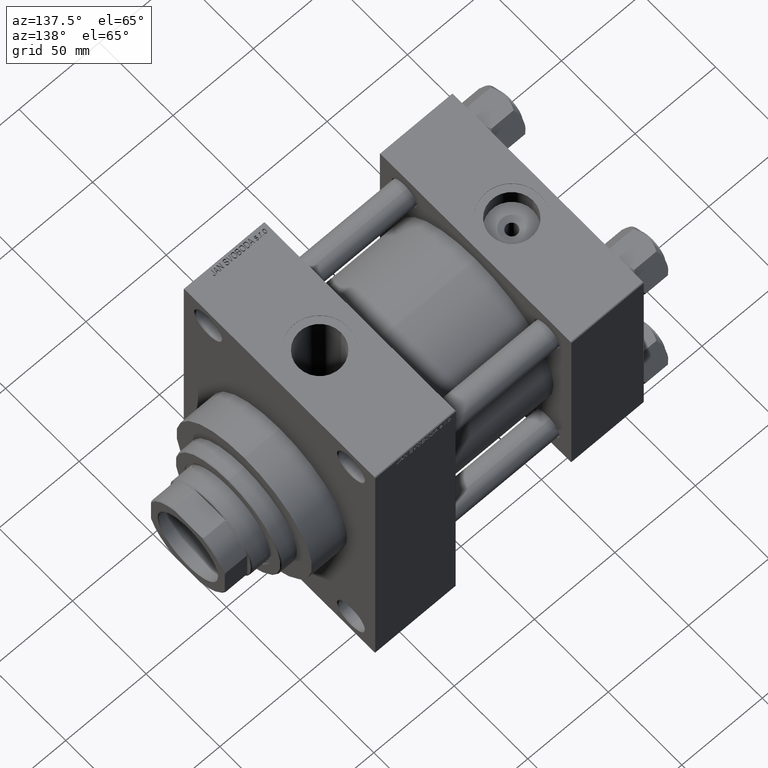
[diagram: clean part render]
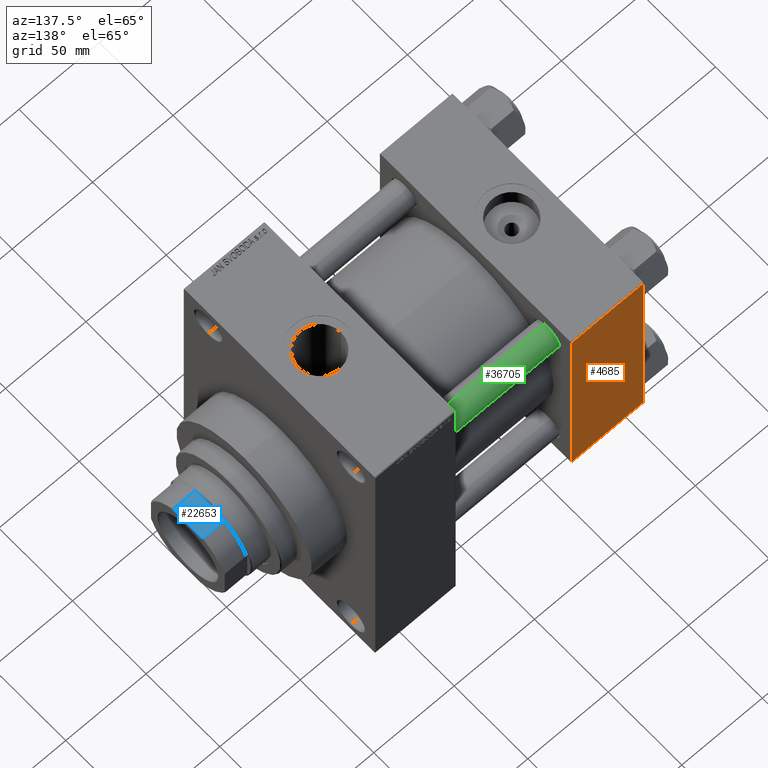
[diagram: same view with three faces highlighted in distinct colors, each labeled with its STEP entity id]
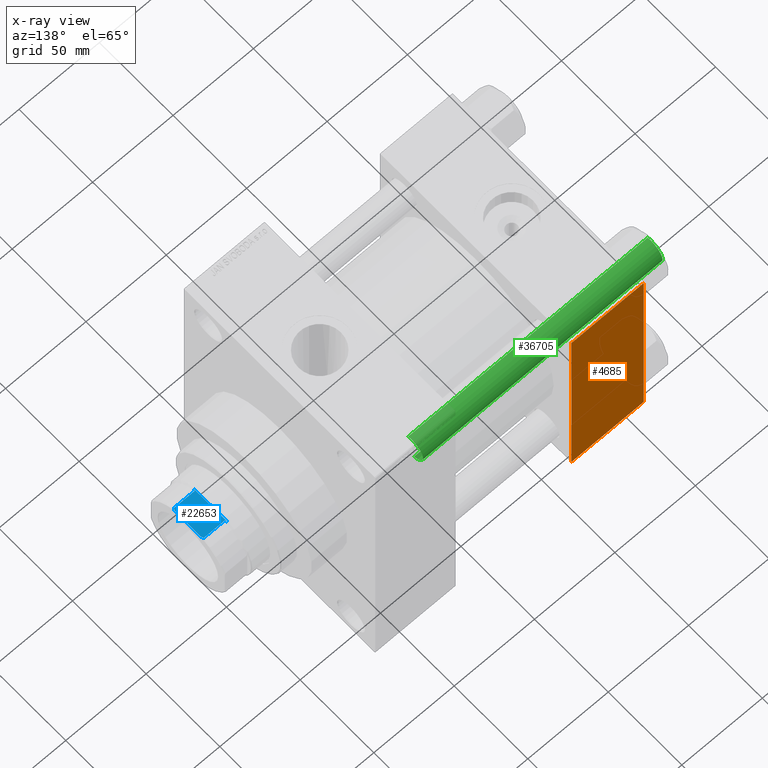
[diagram: x-ray of the same camera — body ghosted, the three highlighted faces saturated]
A machine part, auxiliary view with three faces highlighted in distinct colors.
The next image is the same camera in x-ray (body ghosted, the three faces saturated) — at least one of them is partly hidden behind the body in this view.
Their STEP definitions:

[orange] entity #4685 — the highlighted planar face has unit normal (0, 1, 0).
#506 = CARTESIAN_POINT ( 'NONE',  ( 45.00000000000000000, 65.00000000000000000, -64.49999999999995737 ) ) ;
#1138 = VERTEX_POINT ( 'NONE', #42603 ) ;
#3450 = LINE ( 'NONE', #47638, #39539 ) ;
#3804 = VERTEX_POINT ( 'NONE', #17317 ) ;
#4685 = ADVANCED_FACE ( 'NONE', ( #26714 ), #34434, .T. ) ;
#6747 = VERTEX_POINT ( 'NONE', #506 ) ;
#8692 = ORIENTED_EDGE ( 'NONE', *, *, #38122, .T. ) ;
#12024 = CARTESIAN_POINT ( 'NONE',  ( 45.00000000000000000, 65.00000000000000000, 65.00000000000001421 ) ) ;
#14873 = ORIENTED_EDGE ( 'NONE', *, *, #35989, .T. ) ;
#15197 = EDGE_CURVE ( 'NONE', #6747, #1138, #33347, .T. ) ;
#17317 = CARTESIAN_POINT ( 'NONE',  ( 0.000000000000000000, 65.00000000000000000, 64.49999999999998579 ) ) ;
#17930 = VECTOR ( 'NONE', #35526, 1000.000000000000000 ) ;
#20169 = CARTESIAN_POINT ( 'NONE',  ( 45.00000000000000000, 65.00000000000000000, 64.49999999999998579 ) ) ;
#20557 = LINE ( 'NONE', #23716, #17930 ) ;
#22277 = DIRECTION ( 'NONE',  ( 1.000000000000000000, 0.000000000000000000, 0.000000000000000000 ) ) ;
#23716 = CARTESIAN_POINT ( 'NONE',  ( 0.000000000000000000, 65.00000000000000000, 65.00000000000001421 ) ) ;
#25696 = ORIENTED_EDGE ( 'NONE', *, *, #15197, .T. ) ;
#26714 = FACE_OUTER_BOUND ( 'NONE', #46799, .T. ) ;
#26966 = CARTESIAN_POINT ( 'NONE',  ( 45.00000000000000000, 65.00000000000000000, 65.00000000000001421 ) ) ;
#28273 = AXIS2_PLACEMENT_3D ( 'NONE', #26966, #41918, #34686 ) ;
#30622 = VECTOR ( 'NONE', #36710, 1000.000000000000000 ) ;
#33347 = LINE ( 'NONE', #39865, #30622 ) ;
#33510 = DIRECTION ( 'NONE',  ( 0.000000000000000000, 0.000000000000000000, -1.000000000000000000 ) ) ;
#34434 = PLANE ( 'NONE',  #28273 ) ;
#34686 = DIRECTION ( 'NONE',  ( 0.000000000000000000, -0.000000000000000000, 1.000000000000000000 ) ) ;
#35526 = DIRECTION ( 'NONE',  ( 0.000000000000000000, 0.000000000000000000, -1.000000000000000000 ) ) ;
#35989 = EDGE_CURVE ( 'NONE', #3804, #38512, #3450, .T. ) ;
#36231 = EDGE_CURVE ( 'NONE', #3804, #1138, #20557, .T. ) ;
#36655 = LINE ( 'NONE', #12024, #42791 ) ;
#36710 = DIRECTION ( 'NONE',  ( -1.000000000000000000, 0.000000000000000000, 0.000000000000000000 ) ) ;
#38122 = EDGE_CURVE ( 'NONE', #38512, #6747, #36655, .T. ) ;
#38512 = VERTEX_POINT ( 'NONE', #20169 ) ;
#39539 = VECTOR ( 'NONE', #22277, 1000.000000000000000 ) ;
#39865 = CARTESIAN_POINT ( 'NONE',  ( 45.00000000000000000, 65.00000000000000000, -64.49999999999995737 ) ) ;
#41918 = DIRECTION ( 'NONE',  ( -0.000000000000000000, 1.000000000000000000, 0.000000000000000000 ) ) ;
#42603 = CARTESIAN_POINT ( 'NONE',  ( 0.000000000000000000, 65.00000000000000000, -64.49999999999995737 ) ) ;
#42791 = VECTOR ( 'NONE', #33510, 1000.000000000000000 ) ;
#46799 = EDGE_LOOP ( 'NONE', ( #8692, #25696, #47456, #14873 ) ) ;
#47456 = ORIENTED_EDGE ( 'NONE', *, *, #36231, .F. ) ;
#47638 = CARTESIAN_POINT ( 'NONE',  ( 45.00000000000000000, 65.00000000000000000, 64.49999999999998579 ) ) ;

[blue] entity #22653 — the highlighted planar face has unit normal (0, 0, -1).
#280 = EDGE_LOOP ( 'NONE', ( #32016, #15973, #34382, #26750, #41806, #22209, #18950, #604 ) ) ;
#604 = ORIENTED_EDGE ( 'NONE', *, *, #15417, .T. ) ;
#849 = B_SPLINE_CURVE_WITH_KNOTS ( 'NONE', 3,
 ( #40653, #33652, #18689, #31215 ),
 .UNSPECIFIED., .F., .F.,
 ( 4, 4 ),
 ( 0.1355604709160383725, 0.1368996522529525306 ),
 .UNSPECIFIED. ) ;
#1391 = EDGE_CURVE ( 'NONE', #24728, #8605, #41831, .T. ) ;
#2935 = CARTESIAN_POINT ( 'NONE',  ( 10.19803902718555655, -25.00000000000000000, 178.5000000000000000 ) ) ;
#3449 = CARTESIAN_POINT ( 'NONE',  ( 10.19803902718555655, -25.00000000000000000, 178.5000000000000000 ) ) ;
#4144 = PLANE ( 'NONE',  #35350 ) ;
#4149 = CARTESIAN_POINT ( 'NONE',  ( 11.45643923738976611, -25.00000000000000000, 165.0000000000000000 ) ) ;
#4664 = DIRECTION ( 'NONE',  ( 1.000000000000000000, 0.000000000000000000, 0.000000000000000000 ) ) ;
#5503 = CARTESIAN_POINT ( 'NONE',  ( -8.789197915623443436, -25.00000000000000000, 179.0000000000000284 ) ) ;
#5561 = CARTESIAN_POINT ( 'NONE',  ( 11.45643923738976611, -25.00000000000000000, 165.0000000000000000 ) ) ;
#6192 = VERTEX_POINT ( 'NONE', #22742 ) ;
#7675 = VECTOR ( 'NONE', #26364, 1000.000000000000000 ) ;
#7890 = DIRECTION ( 'NONE',  ( -0.000000000000000000, -0.000000000000000000, 1.000000000000000000 ) ) ;
#8030 = CARTESIAN_POINT ( 'NONE',  ( 9.731776668926016782, -25.00000000000000000, 178.6761096935717887 ) ) ;
#8605 = VERTEX_POINT ( 'NONE', #4149 ) ;
#10139 = CARTESIAN_POINT ( 'NONE',  ( 10.19803902718555655, -25.00000000000000000, 165.5000000000000853 ) ) ;
#10352 = EDGE_CURVE ( 'NONE', #6192, #12978, #45395, .T. ) ;
#11597 = EDGE_CURVE ( 'NONE', #14853, #37225, #44336, .T. ) ;
#12530 = FACE_OUTER_BOUND ( 'NONE', #280, .T. ) ;
#12978 = VERTEX_POINT ( 'NONE', #19022 ) ;
#14853 = VERTEX_POINT ( 'NONE', #39927 ) ;
#15283 = CARTESIAN_POINT ( 'NONE',  ( 8.789197915623477186, -25.00000000000000000, 179.0000000000000284 ) ) ;
#15417 = EDGE_CURVE ( 'NONE', #8605, #14853, #31821, .T. ) ;
#15973 = ORIENTED_EDGE ( 'NONE', *, *, #28628, .T. ) ;
#16663 = CARTESIAN_POINT ( 'NONE',  ( 10.62016728023123768, -25.00000000000000000, 165.3405599852209207 ) ) ;
#17735 = CARTESIAN_POINT ( 'NONE',  ( -10.19803902718555655, -25.00000000000000000, -0.001000000000001000089 ) ) ;
#18689 = CARTESIAN_POINT ( 'NONE',  ( -11.03925053156713965, -25.00000000000000000, 165.1737998930466347 ) ) ;
#18865 = DIRECTION ( 'NONE',  ( 0.000000000000000000, -0.000000000000000000, 1.000000000000000000 ) ) ;
#18950 = ORIENTED_EDGE ( 'NONE', *, *, #1391, .T. ) ;
#19022 = CARTESIAN_POINT ( 'NONE',  ( -10.19803902718555655, -25.00000000000000000, 178.5000000000000000 ) ) ;
#20223 = CARTESIAN_POINT ( 'NONE',  ( -10.19803902718555655, -25.00000000000000000, 178.5000000000000000 ) ) ;
#20567 = B_SPLINE_CURVE_WITH_KNOTS ( 'NONE', 3,
 ( #3449, #8030, #22026, #15283 ),
 .UNSPECIFIED., .F., .F.,
 ( 4, 4 ),
 ( 0.000000000000000000, 0.001494935877430033765 ),
 .UNSPECIFIED. ) ;
#22026 = CARTESIAN_POINT ( 'NONE',  ( 9.262276112429418617, -25.00000000000000000, 178.8430951735361134 ) ) ;
#22101 = VECTOR ( 'NONE', #4664, 1000.000000000000000 ) ;
#22106 = CARTESIAN_POINT ( 'NONE',  ( 8.789197915623477186, -25.00000000000000000, 179.0000000000000284 ) ) ;
#22209 = ORIENTED_EDGE ( 'NONE', *, *, #44788, .T. ) ;
#22653 = ADVANCED_FACE ( 'NONE', ( #12530 ), #4144, .F. ) ;
#22742 = CARTESIAN_POINT ( 'NONE',  ( -8.789197915623443436, -25.00000000000000000, 179.0000000000000284 ) ) ;
#24178 = EDGE_CURVE ( 'NONE', #6192, #30538, #36983, .T. ) ;
#24351 = VECTOR ( 'NONE', #7890, 1000.000000000000000 ) ;
#24728 = VERTEX_POINT ( 'NONE', #39779 ) ;
#24970 = DIRECTION ( 'NONE',  ( -0.000000000000000000, -0.000000000000000000, 1.000000000000000000 ) ) ;
#26364 = DIRECTION ( 'NONE',  ( 1.000000000000000000, 0.000000000000000000, 0.000000000000000000 ) ) ;
#26630 = CARTESIAN_POINT ( 'NONE',  ( -24.99999999999999289, -25.00000000000000000, 165.0000000000000000 ) ) ;
#26750 = ORIENTED_EDGE ( 'NONE', *, *, #10352, .T. ) ;
#27018 = DIRECTION ( 'NONE',  ( 0.000000000000000000, 1.000000000000000000, 0.000000000000000000 ) ) ;
#28628 = EDGE_CURVE ( 'NONE', #37225, #30538, #20567, .T. ) ;
#29984 = CARTESIAN_POINT ( 'NONE',  ( -24.99999999999999289, -25.00000000000000000, 179.0000000000000284 ) ) ;
#30369 = CARTESIAN_POINT ( 'NONE',  ( -9.262276112429397301, -25.00000000000000000, 178.8430951735361134 ) ) ;
#30538 = VERTEX_POINT ( 'NONE', #22106 ) ;
#30823 = VERTEX_POINT ( 'NONE', #32923 ) ;
#30850 = CARTESIAN_POINT ( 'NONE',  ( -9.731776668926000795, -25.00000000000000000, 178.6761096935717887 ) ) ;
#31215 = CARTESIAN_POINT ( 'NONE',  ( -11.45643923738979453, -25.00000000000000000, 165.0000000000000000 ) ) ;
#31821 = B_SPLINE_CURVE_WITH_KNOTS ( 'NONE', 3,
 ( #5561, #46588, #16663, #10139 ),
 .UNSPECIFIED., .F., .F.,
 ( 4, 4 ),
 ( 0.1622062685616141586, 0.1635249585344649148 ),
 .UNSPECIFIED. ) ;
#32016 = ORIENTED_EDGE ( 'NONE', *, *, #11597, .T. ) ;
#32923 = CARTESIAN_POINT ( 'NONE',  ( -10.19803902718555655, -25.00000000000000000, 165.5000000000000853 ) ) ;
#33652 = CARTESIAN_POINT ( 'NONE',  ( -10.61985169700611031, -25.00000000000000000, 165.3406791826300264 ) ) ;
#34382 = ORIENTED_EDGE ( 'NONE', *, *, #24178, .F. ) ;
#35350 = AXIS2_PLACEMENT_3D ( 'NONE', #36973, #27018, #18865 ) ;
#36973 = CARTESIAN_POINT ( 'NONE',  ( -24.99999999999999289, -25.00000000000000000, 179.0000000000000284 ) ) ;
#36983 = LINE ( 'NONE', #29984, #7675 ) ;
#37225 = VERTEX_POINT ( 'NONE', #2935 ) ;
#39779 = CARTESIAN_POINT ( 'NONE',  ( -11.45643923738979453, -25.00000000000000000, 165.0000000000000000 ) ) ;
#39927 = CARTESIAN_POINT ( 'NONE',  ( 10.19803902718555655, -25.00000000000000000, 165.5000000000000853 ) ) ;
#40653 = CARTESIAN_POINT ( 'NONE',  ( -10.19803902718555655, -25.00000000000000000, 165.5000000000000853 ) ) ;
#41340 = VECTOR ( 'NONE', #24970, 1000.000000000000000 ) ;
#41806 = ORIENTED_EDGE ( 'NONE', *, *, #43756, .F. ) ;
#41831 = LINE ( 'NONE', #26630, #22101 ) ;
#43756 = EDGE_CURVE ( 'NONE', #30823, #12978, #44038, .T. ) ;
#43871 = CARTESIAN_POINT ( 'NONE',  ( 10.19803902718555655, -25.00000000000000000, -0.001000000000001000089 ) ) ;
#44038 = LINE ( 'NONE', #17735, #41340 ) ;
#44336 = LINE ( 'NONE', #43871, #24351 ) ;
#44788 = EDGE_CURVE ( 'NONE', #30823, #24728, #849, .T. ) ;
#45395 = B_SPLINE_CURVE_WITH_KNOTS ( 'NONE', 3,
 ( #5503, #30369, #30850, #20223 ),
 .UNSPECIFIED., .F., .F.,
 ( 4, 4 ),
 ( 1.734723475976807094E-18, 0.001494935877430063039 ),
 .UNSPECIFIED. ) ;
#46588 = CARTESIAN_POINT ( 'NONE',  ( 11.03955317472396658, -25.00000000000000000, 165.1736738125761974 ) ) ;

[green] entity #36705 — the highlighted cylindrical surface (edge-blend (fillet) strip) has radius 8 mm, axis along (-1, -0, 0).
#926 = LINE ( 'NONE', #15656, #35215 ) ;
#1156 = DIRECTION ( 'NONE',  ( -0.000000000000000000, -0.000000000000000000, -1.000000000000000000 ) ) ;
#1586 = VERTEX_POINT ( 'NONE', #38147 ) ;
#2362 = VERTEX_POINT ( 'NONE', #44940 ) ;
#2900 = CARTESIAN_POINT ( 'NONE',  ( 8.000000000000000000, 9.797174393178825657E-16, 0.5000000000000004441 ) ) ;
#3681 = CIRCLE ( 'NONE', #32220, 8.000000000000000000 ) ;
#6825 = DIRECTION ( 'NONE',  ( 1.000000000000000000, 0.000000000000000000, 0.000000000000000000 ) ) ;
#7177 = VERTEX_POINT ( 'NONE', #9784 ) ;
#8148 = CYLINDRICAL_SURFACE ( 'NONE', #45749, 8.000000000000000000 ) ;
#9784 = CARTESIAN_POINT ( 'NONE',  ( 8.000000000000000000, 9.797174393178825657E-16, 149.5000000000000000 ) ) ;
#10293 = LINE ( 'NONE', #29335, #37084 ) ;
#13841 = EDGE_CURVE ( 'NONE', #7177, #42534, #926, .T. ) ;
#15656 = CARTESIAN_POINT ( 'NONE',  ( 8.000000000000000000, 9.797174393178825657E-16, 150.0000000000000000 ) ) ;
#16945 = DIRECTION ( 'NONE',  ( 0.000000000000000000, 0.000000000000000000, -1.000000000000000000 ) ) ;
#18537 = CARTESIAN_POINT ( 'NONE',  ( 0.000000000000000000, 0.000000000000000000, 150.0000000000000000 ) ) ;
#21067 = CARTESIAN_POINT ( 'NONE',  ( 0.000000000000000000, 0.000000000000000000, 0.5000000000000004441 ) ) ;
#21694 = ORIENTED_EDGE ( 'NONE', *, *, #32135, .T. ) ;
#22344 = ORIENTED_EDGE ( 'NONE', *, *, #13841, .T. ) ;
#24656 = DIRECTION ( 'NONE',  ( 1.000000000000000000, 0.000000000000000000, 0.000000000000000000 ) ) ;
#24863 = AXIS2_PLACEMENT_3D ( 'NONE', #36464, #16945, #24656 ) ;
#26497 = FACE_OUTER_BOUND ( 'NONE', #36695, .T. ) ;
#28320 = EDGE_CURVE ( 'NONE', #2362, #1586, #10293, .T. ) ;
#29335 = CARTESIAN_POINT ( 'NONE',  ( -8.000000000000000000, 0.000000000000000000, 150.0000000000000000 ) ) ;
#32135 = EDGE_CURVE ( 'NONE', #2362, #7177, #40260, .T. ) ;
#32220 = AXIS2_PLACEMENT_3D ( 'NONE', #21067, #43045, #6825 ) ;
#33744 = DIRECTION ( 'NONE',  ( -0.000000000000000000, -0.000000000000000000, -1.000000000000000000 ) ) ;
#34446 = ORIENTED_EDGE ( 'NONE', *, *, #28320, .F. ) ;
#35215 = VECTOR ( 'NONE', #1156, 1000.000000000000000 ) ;
#36464 = CARTESIAN_POINT ( 'NONE',  ( 0.000000000000000000, 0.000000000000000000, 149.5000000000000000 ) ) ;
#36695 = EDGE_LOOP ( 'NONE', ( #21694, #22344, #40793, #34446 ) ) ;
#36705 = ADVANCED_FACE ( 'NONE', ( #26497 ), #8148, .T. ) ;
#36880 = DIRECTION ( 'NONE',  ( -1.000000000000000000, 0.000000000000000000, 0.000000000000000000 ) ) ;
#37084 = VECTOR ( 'NONE', #47442, 1000.000000000000000 ) ;
#38147 = CARTESIAN_POINT ( 'NONE',  ( -8.000000000000000000, 0.000000000000000000, 0.5000000000000004441 ) ) ;
#40260 = CIRCLE ( 'NONE', #24863, 8.000000000000000000 ) ;
#40793 = ORIENTED_EDGE ( 'NONE', *, *, #46366, .T. ) ;
#42534 = VERTEX_POINT ( 'NONE', #2900 ) ;
#43045 = DIRECTION ( 'NONE',  ( -0.000000000000000000, -0.000000000000000000, 1.000000000000000000 ) ) ;
#44940 = CARTESIAN_POINT ( 'NONE',  ( -8.000000000000000000, 0.000000000000000000, 149.5000000000000000 ) ) ;
#45749 = AXIS2_PLACEMENT_3D ( 'NONE', #18537, #33744, #36880 ) ;
#46366 = EDGE_CURVE ( 'NONE', #42534, #1586, #3681, .T. ) ;
#47442 = DIRECTION ( 'NONE',  ( -0.000000000000000000, -0.000000000000000000, -1.000000000000000000 ) ) ;